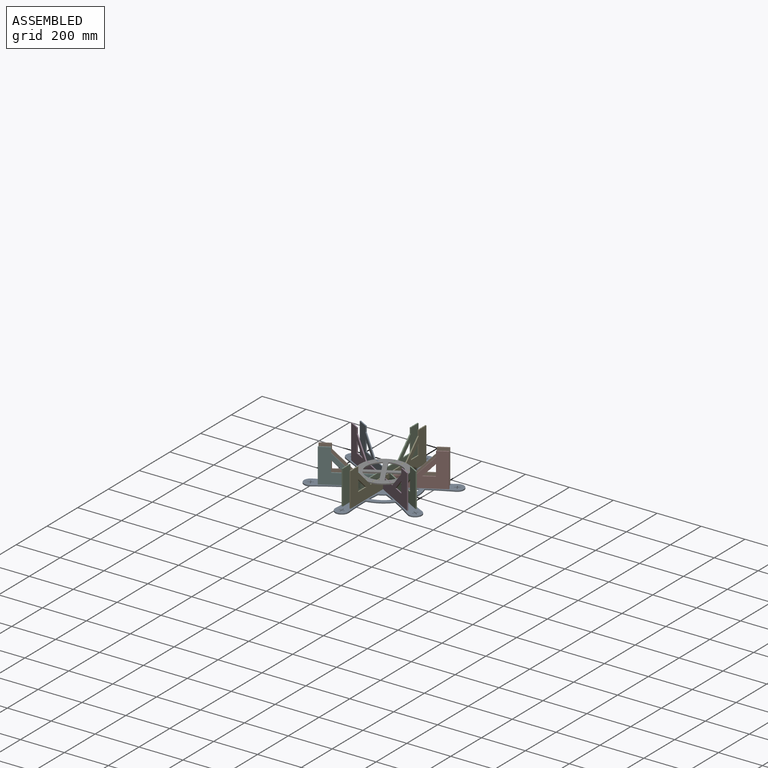
[diagram: assembled view]
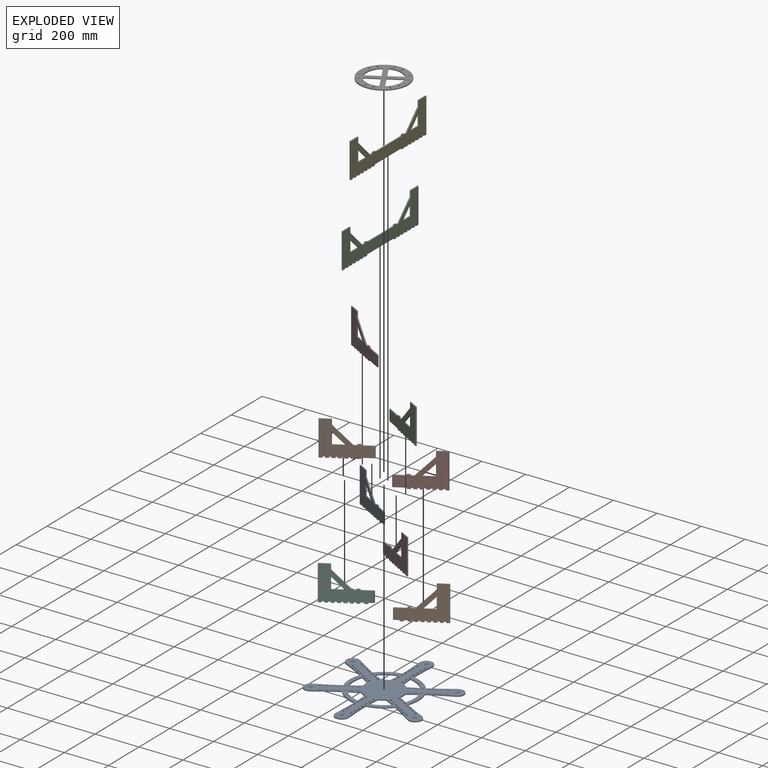
[diagram: exploded view]
GUIDED TOUR — MATED ASSEMBLY (Onshape document 719e027ad515a8deff62a5f3, AutoMate assembly 719e027ad515a8deff62a5f3_9986dfa3a491b61610971efd_74ac65e22d74407ae84c7490_default)

This assembly has 12 components, labeled P0..P11 below (a component is one placed occurrence of a part; the same part can appear more than once), held together by 11 mates. A mate is a constraint between two components; its type names the relative motion it leaves free:
  FASTENED — locks the two components together rigidly (no relative motion).
Axis/direction vectors are unit vectors and 'through' points are millimeter coordinates, both in the assembly's world frame.

MATES
  1. FASTENED "Fastened 4": P8 <-> P0, direction (0.000, 0.000, -1.000) through (-124.55, -152.64, -69.97) mm
  2. FASTENED "Fastened 11": P6 <-> P9, direction (0.000, 0.000, 1.000) through (158.97, -225.14, -9.81) mm
  3. FASTENED "Fastened 1": P4 <-> P0, direction (0.000, 0.000, -1.000) through (97.86, -537.86, -69.97) mm
  4. FASTENED "Fastened 8": P11 <-> P0, direction (0.000, 0.000, -1.000) through (-142.41, -183.58, -69.97) mm
  5. FASTENED "Fastened 2": P2 <-> P0, direction (0.000, 0.000, -1.000) through (62.13, -537.86, -69.97) mm
  6. FASTENED "Fastened 3": P3 <-> P0, direction (0.000, 0.000, -1.000) through (284.54, -430.08, -69.97) mm
  7. FASTENED "Fastened 9": P1 <-> P0, direction (0.000, 0.000, -1.000) through (-142.41, -399.14, -69.97) mm
  8. FASTENED "Fastened 7": P10 <-> P0, direction (0.000, 0.000, -1.000) through (302.40, -399.14, -69.97) mm
  9. FASTENED "Fastened 10": P7 <-> P0, direction (0.000, 0.000, -1.000) through (302.40, -183.58, -69.97) mm
  10. FASTENED "Fastened 5": P5 <-> P0, direction (0.000, 0.000, -1.000) through (-124.55, -430.08, -69.97) mm
  11. FASTENED "Fastened 6": P9 <-> P0, direction (0.000, 0.000, -1.000) through (284.54, -152.64, -69.97) mm

ASSEMBLY ORDER
  1. P7 — the base component [order verified]
  2. P1 [order verified]
  3. P3 [order verified]
  4. P8 [order verified]
  5. P5 [order verified]
  6. P9 [order verified]
  7. P10 [order verified]
  8. P11 [order verified]
  9. P6 [order verified]
  10. P2 [order verified]
  11. P4 [order verified]
  12. P0 [order verified]
(P0, P6 verified with a relaxed clearance tolerance: the source model stores slight part interference there.)
Order-tag legend:
  [order verified] — this step's position reverses a verified removal order: the component was checked to insert without passing through the ones already placed.

Of the 12 components, 11 carry the full construction recipe — the FeatureScript program that regenerates the part's solid from scratch; the rest are supplied as boundary geometry only.
Each toured component is shown spotlighted twice — in the assembled view, then in the exploded view, where a leader line traces a displaced component back to its assembled socket (saturated green if recipe-attached, orange if geometry-only; every other component desaturated gray) — followed by its recipe or geometry summary and the mates that hold it.
NOTE — this tour is split across 2 documents so each fits a 32k-token context. This is document 1: the component sections continue in the remaining 1 document, each repeating the header above.
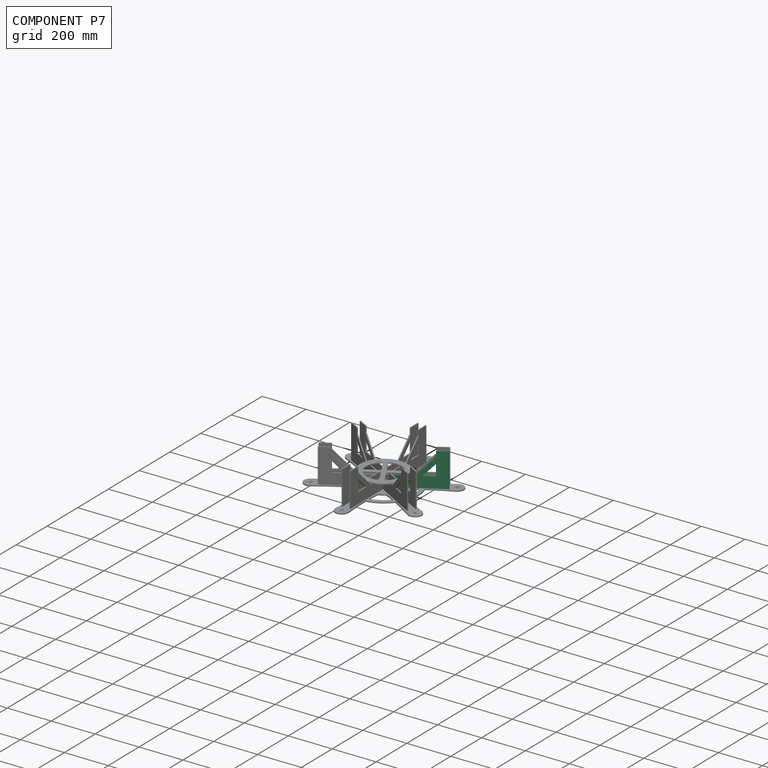
[diagram: component P7 — assembled]
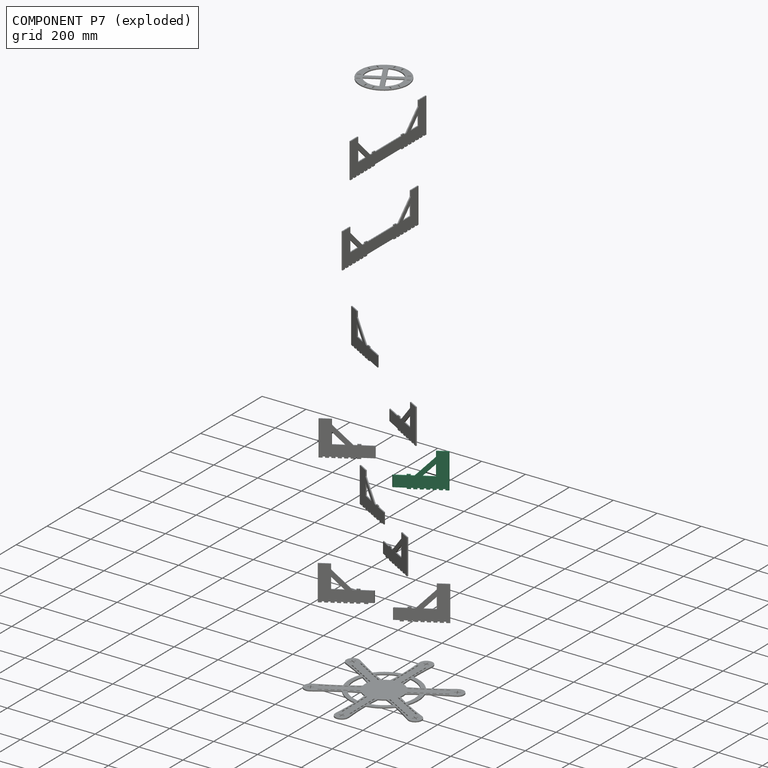
[diagram: component P7 — exploded]
COMPONENT P7 — same part as P1 (CADFS 00227162); its construction recipe is shown at P1.
Held by: FASTENED mate "Fastened 10" to P0.
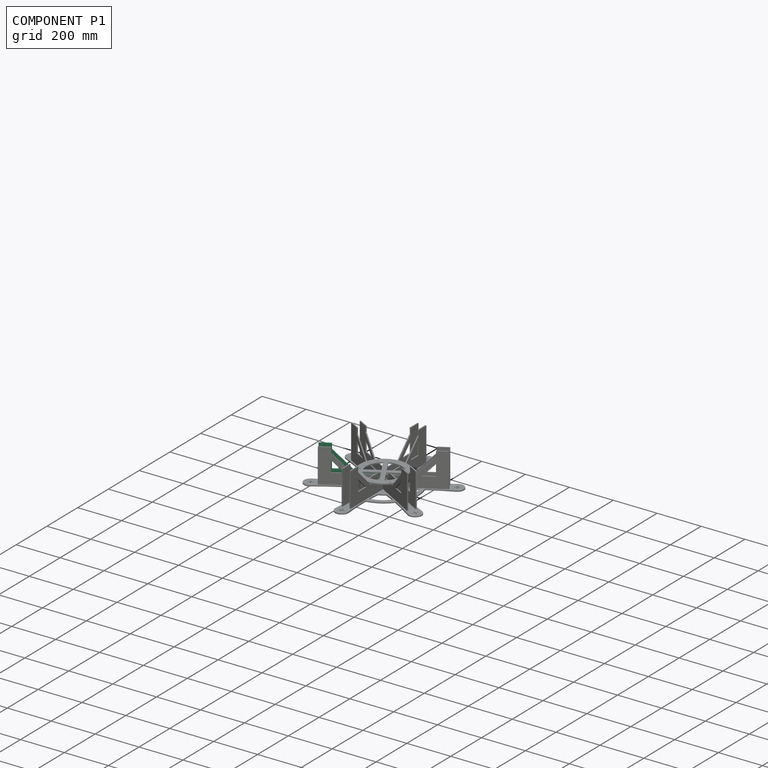
[diagram: component P1 — assembled]
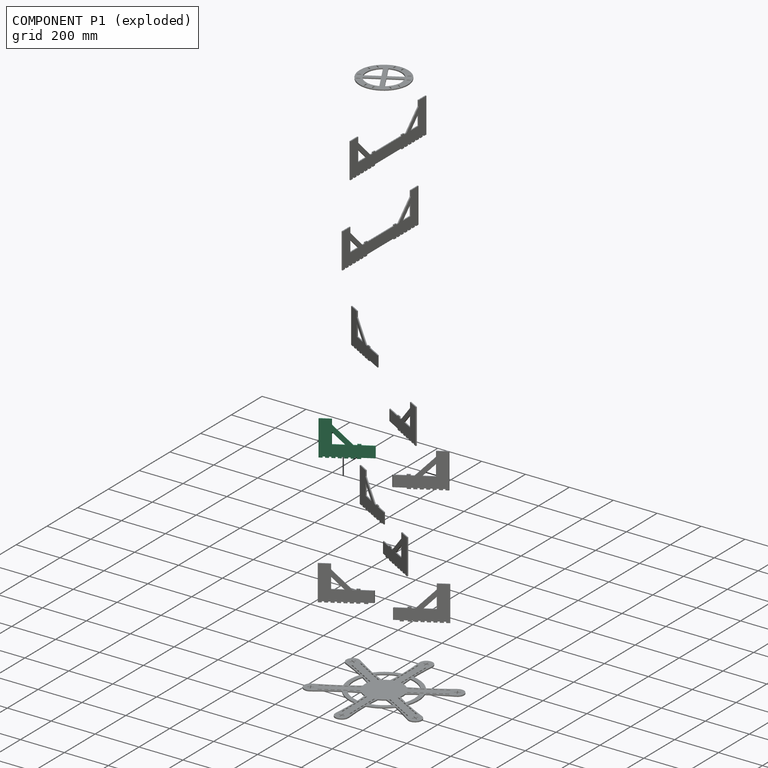
[diagram: component P1 — exploded]
COMPONENT P1 — recipe-attached (CADFS 00227162, mesh-verified: the recipe's output STEP matches this component's geometry to below the mesh-comparison resolution (tessellation chordal tolerance ~0.401 mm)).
Held by: FASTENED mate "Fastened 9" to P0.
Construction recipe (FeatureScript — the CAD program that rebuilds this solid; sketch coordinates are in the units given by the * unit suffixes, e.g. mm):

FeatureScript 1511;
import(path : "onshape/std/geometry.fs", version : "1511.0");
import(path : "onshape/std/common.fs", version : "1511.0");
const mm = millimeter;
const VERTEX = EntityType.VERTEX;
const EDGE = EntityType.EDGE;
const FACE = EntityType.FACE;
const BODY = EntityType.BODY;
function v(x, y){return vector(x, y);}
function OD(order){return orderDisambiguation(order);}
function OSD(set){return originalSetDisambiguation(set);}
function TD(topology){return topologyDisambiguation(topology);}
function TDD(query){return trueDependencyDisambiguation(query);}
function sQuery(a, b, c) {return sketchEntityQuery(a, b, c);}

annotation { "Feature Type Name" : "Feature", "Feature Type Description" : "" }
export const myFeature = defineFeature(function(context is Context, id is Id, definition is map)
    precondition{}
    {
        {
            var Q0;
            Q0=qCreatedBy(makeId("Front.planeOp"),FACE);
            var sketch = newSketch(context, id + "F0", { "sketchPlane" : qUnion([Q0])});
            skLineSegment(sketch, "E0", {"start": v(-32.42, 0) * mm, "end": v(-246.5, 0) * mm});
            skLineSegment(sketch, "E1", {"start": v(-246.5, 0) * mm, "end": v(-246.5, 130) * mm});
            skLineSegment(sketch, "E2", {"start": v(-246.5, 130) * mm, "end": v(-196.5, 130) * mm});
            skLineSegment(sketch, "E3", {"start": v(-196.5, 130) * mm, "end": v(-196.5, 50) * mm});
            skLineSegment(sketch, "E4", {"start": v(-196.5, 50) * mm, "end": v(-32.42, 50) * mm});
            skLineSegment(sketch, "E5", {"start": v(-196.5, 130) * mm, "end": v(-116.5, 50) * mm});
            skLineSegment(sketch, "E6", {"start": v(-196.5, 101.6) * mm, "end": v(-144.9, 50) * mm});
            skLineSegment(sketch, "E7", {"start": v(-246.5, 0) * mm, "end": v(-246.5, -5.08) * mm});
            skLineSegment(sketch, "E8", {"start": v(-246.5, -5.08) * mm, "end": v(-231.5, -5.08) * mm});
            skLineSegment(sketch, "E9", {"start": v(-231.5, -5.08) * mm, "end": v(-231.5, 0) * mm});
            skLineSegment(sketch, "E10.1.0.0", {"start": v(-207.5, -5.08) * mm, "end": v(-207.5, 0) * mm});
            skLineSegment(sketch, "E10.1.0.1", {"start": v(-222.5, -5.08) * mm, "end": v(-207.5, -5.08) * mm});
            skLineSegment(sketch, "E10.1.0.2", {"start": v(-222.5, 0) * mm, "end": v(-222.5, -5.08) * mm});
            skLineSegment(sketch, "E10.2.0.0", {"start": v(-183.5, -5.08) * mm, "end": v(-183.5, 0) * mm});
            skLineSegment(sketch, "E10.2.0.1", {"start": v(-198.5, -5.08) * mm, "end": v(-183.5, -5.08) * mm});
            skLineSegment(sketch, "E10.2.0.2", {"start": v(-198.5, 0) * mm, "end": v(-198.5, -5.08) * mm});
            skLineSegment(sketch, "E10.3.0.0", {"start": v(-159.5, -5.08) * mm, "end": v(-159.5, 0) * mm});
            skLineSegment(sketch, "E10.3.0.1", {"start": v(-174.5, -5.08) * mm, "end": v(-159.5, -5.08) * mm});
            skLineSegment(sketch, "E10.3.0.2", {"start": v(-174.5, 0) * mm, "end": v(-174.5, -5.08) * mm});
            skLineSegment(sketch, "E10.4.0.0", {"start": v(-135.5, -5.08) * mm, "end": v(-135.5, 0) * mm});
            skLineSegment(sketch, "E10.4.0.1", {"start": v(-150.5, -5.08) * mm, "end": v(-135.5, -5.08) * mm});
            skLineSegment(sketch, "E10.4.0.2", {"start": v(-150.5, 0) * mm, "end": v(-150.5, -5.08) * mm});
            skLineSegment(sketch, "E10.5.0.0", {"start": v(-111.5, -5.08) * mm, "end": v(-111.5, 0) * mm});
            skLineSegment(sketch, "E10.5.0.1", {"start": v(-126.5, -5.08) * mm, "end": v(-111.5, -5.08) * mm});
            skLineSegment(sketch, "E10.5.0.2", {"start": v(-126.5, 0) * mm, "end": v(-126.5, -5.08) * mm});
            skLineSegment(sketch, "E10.6.0.0", {"start": v(-87.5, -5.08) * mm, "end": v(-87.5, 0) * mm});
            skLineSegment(sketch, "E10.6.0.1", {"start": v(-102.5, -5.08) * mm, "end": v(-87.5, -5.08) * mm});
            skLineSegment(sketch, "E10.6.0.2", {"start": v(-102.5, 0) * mm, "end": v(-102.5, -5.08) * mm});
            skLineSegment(sketch, "E10.direction1", {"start": v(-246.5, -5.08) * mm, "end": v(-222.5, -5.08) * mm, "construction": true});
            skLineSegment(sketch, "E11", {"start": v(-32.42, 50) * mm, "end": v(-32.42, 0) * mm});
            skPoint(sketch, "E12.start.orphan", {"position": v(0, 50) * mm});
            skSolve(sketch);
        }
        {
            var Q0;
            Q0=qSketchRegion(id+"F0",true);
            extrude(context, id + "F1", {"entities" : qUnion([Q0]), "depth" : 5.08 * mm});
        }
        {
            var Q0;
            Q0=makeQuery(id+"F1.opExtrude","SWEPT_FACE",FACE,{"disambiguationData":[OSD([sQuery(id+"F0.wireOp",EDGE,"E2")])]});
            var Q1;
            Q1=makeQuery(id+"F1.opExtrude","SWEPT_FACE",FACE,{"disambiguationData":[OSD([sQuery(id+"F0.wireOp",EDGE,"0f3f7d79-0024-4810-854d-b7a6c9fa19c64.MirrorCS")])]});
            extrude(context, id + "F2", {"entities" : qUnion([Q0, Q1]), "operationType" : NewBodyOperationType.ADD, "depth" : 25 * mm});
        }
        {
            var Q0;
            {var subQ0=sQuery(id+"F0.wireOp",EDGE,"E0");Q0=makeQuery(id+"F1.opExtrude","SWEPT_FACE",FACE,{"disambiguationData":[OSD([subQ0]),TDD([makeQuery(id+"F0.imprint","IMPRINT",EDGE,{"disambiguationData":[TD([[makeQuery(id+"F0.imprint","INTERSECT",VERTEX,{"derivedFrom":[subQ0,sQuery(id+"F0.wireOp",EDGE,"E11")]}),-1.0]])],"derivedFrom":subQ0})])]});}
            var sketch = newSketch(context, id + "F3", { "sketchPlane" : qUnion([Q0])});
            skLineSegment(sketch, "E13", {"start": v(-32.42, 5.08) * mm, "end": v(-35.35, 0) * mm});
            skSolve(sketch);
        }
        {
            var Q0;
            {var subQ0=sQuery(id+"F3.wireOp",EDGE,"E13");Q0=makeQuery(id+"F3.imprint","IMPRINT",FACE,{"disambiguationData":[TD([[makeQuery(id+"F3.imprint","IMPRINT",EDGE,{"derivedFrom":subQ0}),1.0]])]});}
            extrude(context, id + "F4", {"entities" : qUnion([Q0]), "operationType" : NewBodyOperationType.REMOVE, "oppositeDirection" : true, "depth" : 58 * mm});
        }
        {
            var Q0;
            {var subQ0=sQuery(id+"F0.wireOp",EDGE,"E4");Q0=makeQuery(id+"F1.opExtrude","SWEPT_FACE",FACE,{"disambiguationData":[OSD([subQ0]),TDD([makeQuery(id+"F0.imprint","IMPRINT",EDGE,{"disambiguationData":[TD([[makeQuery(id+"F0.imprint","INTERSECT",VERTEX,{"derivedFrom":[subQ0,sQuery(id+"F0.wireOp",EDGE,"E11")]}),1.0]])],"derivedFrom":subQ0})])]});}
            var sketch = newSketch(context, id + "F5", { "sketchPlane" : qUnion([Q0])});
            skLineSegment(sketch, "E14.right", {"start": v(-101.5, 0) * mm, "end": v(-101.5, -5.08) * mm});
            skLineSegment(sketch, "E15.MirrorCS", {"start": v(-86.5, 0) * mm, "end": v(-86.5, -5.08) * mm});
            skPoint(sketch, "E14.top.start.orphan", {"position": v(-116.5, -5.08) * mm});
            skPoint(sketch, "E14.bottom.start.orphan", {"position": v(-116.5, 0) * mm});
            skLineSegment(sketch, "E16", {"start": v(-101.5, 0) * mm, "end": v(-86.5, 0) * mm});
            skLineSegment(sketch, "E17", {"start": v(-86.5, -5.08) * mm, "end": v(-101.5, -5.08) * mm});
            skSolve(sketch);
        }
        {
            var Q0;
            Q0 = qSketchRegion(id + "F5", true);
            extrude(context, id + "F6", {"entities" : qUnion([Q0]), "operationType" : NewBodyOperationType.ADD, "depth" : 5.08 * mm});
        }
    });
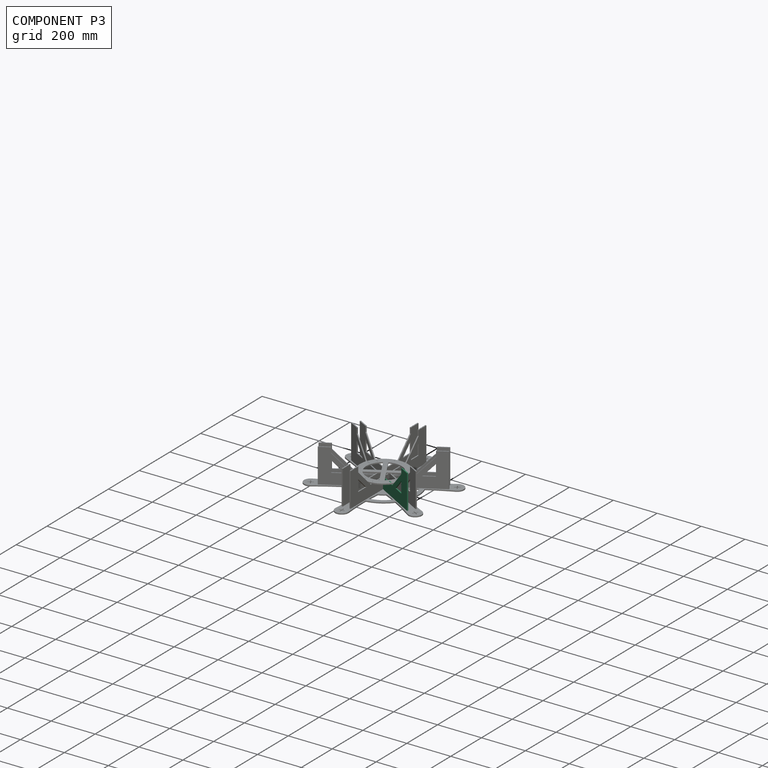
[diagram: component P3 — assembled]
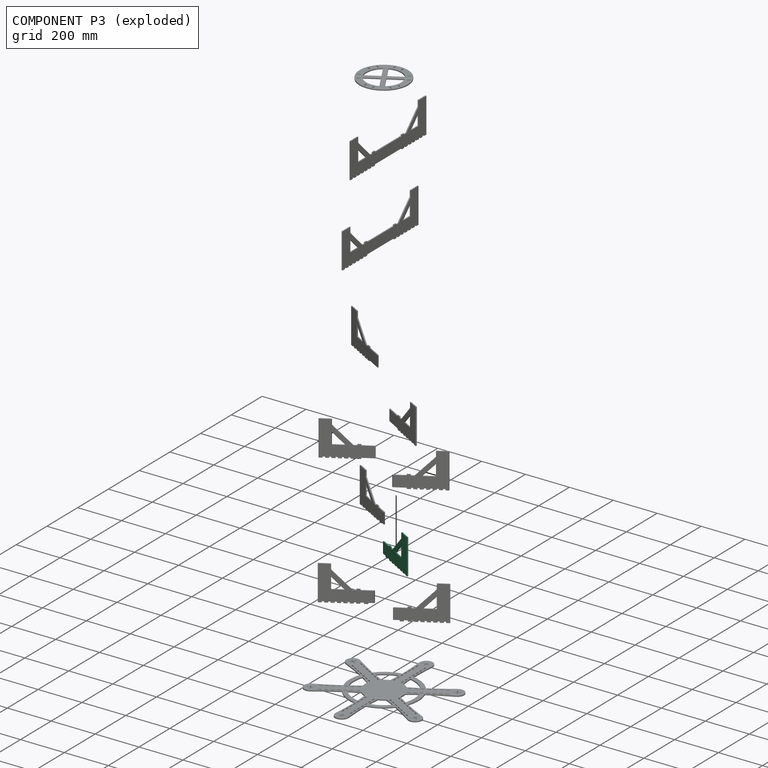
[diagram: component P3 — exploded]
COMPONENT P3 — recipe-attached (CADFS 00227161, mesh-verified: the recipe's output STEP matches this component's geometry to below the mesh-comparison resolution (tessellation chordal tolerance ~0.401 mm)).
Held by: FASTENED mate "Fastened 3" to P0.
Construction recipe (FeatureScript — the CAD program that rebuilds this solid; sketch coordinates are in the units given by the * unit suffixes, e.g. mm):

FeatureScript 1511;
import(path : "onshape/std/geometry.fs", version : "1511.0");
import(path : "onshape/std/common.fs", version : "1511.0");
const mm = millimeter;
const VERTEX = EntityType.VERTEX;
const EDGE = EntityType.EDGE;
const FACE = EntityType.FACE;
const BODY = EntityType.BODY;
function v(x, y){return vector(x, y);}
function OD(order){return orderDisambiguation(order);}
function OSD(set){return originalSetDisambiguation(set);}
function TD(topology){return topologyDisambiguation(topology);}
function TDD(query){return trueDependencyDisambiguation(query);}
function sQuery(a, b, c) {return sketchEntityQuery(a, b, c);}

annotation { "Feature Type Name" : "Feature", "Feature Type Description" : "" }
export const myFeature = defineFeature(function(context is Context, id is Id, definition is map)
    precondition{}
    {
        {
            var Q0;
            Q0=qCreatedBy(makeId("Front.planeOp"),FACE);
            var sketch = newSketch(context, id + "F0", { "sketchPlane" : qUnion([Q0])});
            skLineSegment(sketch, "E0", {"start": v(-32.42, 0) * mm, "end": v(-246.5, 0) * mm});
            skLineSegment(sketch, "E1", {"start": v(-246.5, 0) * mm, "end": v(-246.5, 130) * mm});
            skLineSegment(sketch, "E2", {"start": v(-246.5, 130) * mm, "end": v(-196.5, 130) * mm});
            skLineSegment(sketch, "E3", {"start": v(-196.5, 130) * mm, "end": v(-196.5, 50) * mm});
            skLineSegment(sketch, "E4", {"start": v(-196.5, 50) * mm, "end": v(-32.42, 50) * mm});
            skLineSegment(sketch, "E5", {"start": v(-196.5, 130) * mm, "end": v(-116.5, 50) * mm});
            skLineSegment(sketch, "E6", {"start": v(-196.5, 101.6) * mm, "end": v(-144.9, 50) * mm});
            skLineSegment(sketch, "E7", {"start": v(-246.5, 0) * mm, "end": v(-246.5, -5.08) * mm});
            skLineSegment(sketch, "E8", {"start": v(-246.5, -5.08) * mm, "end": v(-231.5, -5.08) * mm});
            skLineSegment(sketch, "E9", {"start": v(-231.5, -5.08) * mm, "end": v(-231.5, 0) * mm});
            skLineSegment(sketch, "E10.1.0.0", {"start": v(-207.5, -5.08) * mm, "end": v(-207.5, 0) * mm});
            skLineSegment(sketch, "E10.1.0.1", {"start": v(-222.5, -5.08) * mm, "end": v(-207.5, -5.08) * mm});
            skLineSegment(sketch, "E10.1.0.2", {"start": v(-222.5, 0) * mm, "end": v(-222.5, -5.08) * mm});
            skLineSegment(sketch, "E10.2.0.0", {"start": v(-183.5, -5.08) * mm, "end": v(-183.5, 0) * mm});
            skLineSegment(sketch, "E10.2.0.1", {"start": v(-198.5, -5.08) * mm, "end": v(-183.5, -5.08) * mm});
            skLineSegment(sketch, "E10.2.0.2", {"start": v(-198.5, 0) * mm, "end": v(-198.5, -5.08) * mm});
            skLineSegment(sketch, "E10.3.0.0", {"start": v(-159.5, -5.08) * mm, "end": v(-159.5, 0) * mm});
            skLineSegment(sketch, "E10.3.0.1", {"start": v(-174.5, -5.08) * mm, "end": v(-159.5, -5.08) * mm});
            skLineSegment(sketch, "E10.3.0.2", {"start": v(-174.5, 0) * mm, "end": v(-174.5, -5.08) * mm});
            skLineSegment(sketch, "E10.4.0.0", {"start": v(-135.5, -5.08) * mm, "end": v(-135.5, 0) * mm});
            skLineSegment(sketch, "E10.4.0.1", {"start": v(-150.5, -5.08) * mm, "end": v(-135.5, -5.08) * mm});
            skLineSegment(sketch, "E10.4.0.2", {"start": v(-150.5, 0) * mm, "end": v(-150.5, -5.08) * mm});
            skLineSegment(sketch, "E10.5.0.0", {"start": v(-111.5, -5.08) * mm, "end": v(-111.5, 0) * mm});
            skLineSegment(sketch, "E10.5.0.1", {"start": v(-126.5, -5.08) * mm, "end": v(-111.5, -5.08) * mm});
            skLineSegment(sketch, "E10.5.0.2", {"start": v(-126.5, 0) * mm, "end": v(-126.5, -5.08) * mm});
            skLineSegment(sketch, "E10.6.0.0", {"start": v(-87.5, -5.08) * mm, "end": v(-87.5, 0) * mm});
            skLineSegment(sketch, "E10.6.0.1", {"start": v(-102.5, -5.08) * mm, "end": v(-87.5, -5.08) * mm});
            skLineSegment(sketch, "E10.6.0.2", {"start": v(-102.5, 0) * mm, "end": v(-102.5, -5.08) * mm});
            skLineSegment(sketch, "E10.direction1", {"start": v(-246.5, -5.08) * mm, "end": v(-222.5, -5.08) * mm, "construction": true});
            skLineSegment(sketch, "E11", {"start": v(-32.42, 50) * mm, "end": v(-32.42, 0) * mm});
            skPoint(sketch, "E12.start.orphan", {"position": v(0, 50) * mm});
            skSolve(sketch);
        }
        {
            var Q0;
            Q0=qSketchRegion(id+"F0",true);
            extrude(context, id + "F1", {"entities" : qUnion([Q0]), "depth" : 5.08 * mm});
        }
        {
            var Q0;
            Q0=makeQuery(id+"F1.opExtrude","SWEPT_FACE",FACE,{"disambiguationData":[OSD([sQuery(id+"F0.wireOp",EDGE,"E2")])]});
            var Q1;
            Q1=makeQuery(id+"F1.opExtrude","SWEPT_FACE",FACE,{"disambiguationData":[OSD([sQuery(id+"F0.wireOp",EDGE,"0f3f7d79-0024-4810-854d-b7a6c9fa19c64.MirrorCS")])]});
            extrude(context, id + "F2", {"entities" : qUnion([Q0, Q1]), "operationType" : NewBodyOperationType.ADD, "depth" : 25 * mm});
        }
        {
            var Q0;
            {var subQ0=sQuery(id+"F0.wireOp",EDGE,"E0");Q0=makeQuery(id+"F1.opExtrude","SWEPT_FACE",FACE,{"disambiguationData":[OSD([subQ0]),TDD([makeQuery(id+"F0.imprint","IMPRINT",EDGE,{"disambiguationData":[TD([[makeQuery(id+"F0.imprint","INTERSECT",VERTEX,{"derivedFrom":[subQ0,sQuery(id+"F0.wireOp",EDGE,"E11")]}),-1.0]])],"derivedFrom":subQ0})])]});}
            var sketch = newSketch(context, id + "F3", { "sketchPlane" : qUnion([Q0])});
            skLineSegment(sketch, "E13", {"start": v(-32.42, 5.08) * mm, "end": v(-35.35, 0) * mm});
            skSolve(sketch);
        }
        {
            var Q0;
            {var subQ0=sQuery(id+"F3.wireOp",EDGE,"E13");Q0=makeQuery(id+"F3.imprint","IMPRINT",FACE,{"disambiguationData":[TD([[makeQuery(id+"F3.imprint","IMPRINT",EDGE,{"derivedFrom":subQ0}),1.0]])]});}
            extrude(context, id + "F4", {"entities" : qUnion([Q0]), "operationType" : NewBodyOperationType.REMOVE, "oppositeDirection" : true, "depth" : 58 * mm});
        }
        {
            var Q0;
            {var subQ0=sQuery(id+"F0.wireOp",EDGE,"E0");Q0=makeQuery(id+"F1.opExtrude","SWEPT_FACE",FACE,{"disambiguationData":[OSD([subQ0]),TDD([makeQuery(id+"F0.imprint","IMPRINT",EDGE,{"disambiguationData":[TD([[makeQuery(id+"F0.imprint","INTERSECT",VERTEX,{"derivedFrom":[subQ0,sQuery(id+"F0.wireOp",EDGE,"E11")]}),-1.0]])],"derivedFrom":subQ0})])]});}
            var sketch = newSketch(context, id + "F5", { "sketchPlane" : qUnion([Q0])});
            skLineSegment(sketch, "E14.bottom", {"start": v(-72.5, 5.08) * mm, "end": v(-57.5, 5.08) * mm});
            skLineSegment(sketch, "E14.top", {"start": v(-72.5, 0) * mm, "end": v(-57.5, 0) * mm});
            skLineSegment(sketch, "E14.right", {"start": v(-57.5, 5.08) * mm, "end": v(-57.5, 0) * mm});
            skLineSegment(sketch, "E15", {"start": v(-72.5, 5.08) * mm, "end": v(-72.5, 0) * mm});
            skPoint(sketch, "E14.left.start.orphan", {"position": v(-87.5, 5.08) * mm});
            skPoint(sketch, "E16.orphan", {"position": v(-87.5, 0) * mm});
            skSolve(sketch);
        }
        {
            var Q0;
            Q0 = qSketchRegion(id + "F5", true);
            extrude(context, id + "F6", {"entities" : qUnion([Q0]), "operationType" : NewBodyOperationType.ADD, "depth" : 5.08 * mm});
        }
        {
            var Q0;
            {var subQ0=sQuery(id+"F0.wireOp",EDGE,"E4");Q0=makeQuery(id+"F1.opExtrude","SWEPT_FACE",FACE,{"disambiguationData":[OSD([subQ0]),TDD([makeQuery(id+"F0.imprint","IMPRINT",EDGE,{"disambiguationData":[TD([[makeQuery(id+"F0.imprint","INTERSECT",VERTEX,{"derivedFrom":[subQ0,sQuery(id+"F0.wireOp",EDGE,"E11")]}),1.0]])],"derivedFrom":subQ0})])]});}
            var sketch = newSketch(context, id + "F7", { "sketchPlane" : qUnion([Q0])});
            skLineSegment(sketch, "E17.bottom", {"start": v(-101.5, 0) * mm, "end": v(-86.5, 0) * mm});
            skLineSegment(sketch, "E17.top", {"start": v(-101.5, -5.08) * mm, "end": v(-86.5, -5.08) * mm});
            skLineSegment(sketch, "E17.right", {"start": v(-86.5, 0) * mm, "end": v(-86.5, -5.08) * mm});
            skLineSegment(sketch, "E18", {"start": v(-101.5, 0) * mm, "end": v(-101.5, -5.08) * mm});
            skPoint(sketch, "E17.left.start.orphan", {"position": v(-116.5, 0) * mm});
            skPoint(sketch, "E19.orphan", {"position": v(-116.5, -5.08) * mm});
            skSolve(sketch);
        }
        {
            var Q0;
            Q0 = qSketchRegion(id + "F7", true);
            extrude(context, id + "F8", {"entities" : qUnion([Q0]), "operationType" : NewBodyOperationType.ADD, "depth" : 5.08 * mm});
        }
    });
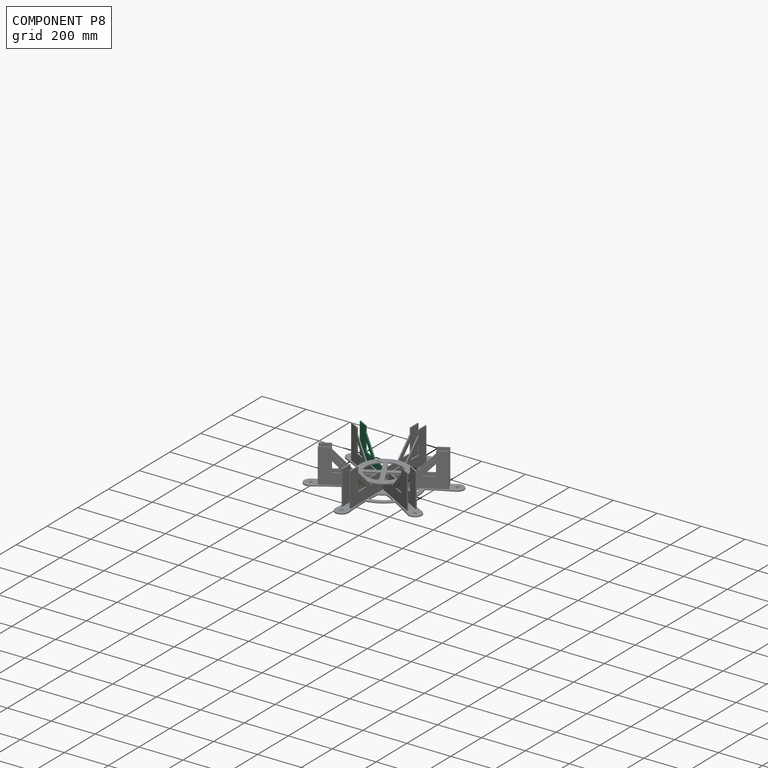
[diagram: component P8 — assembled]
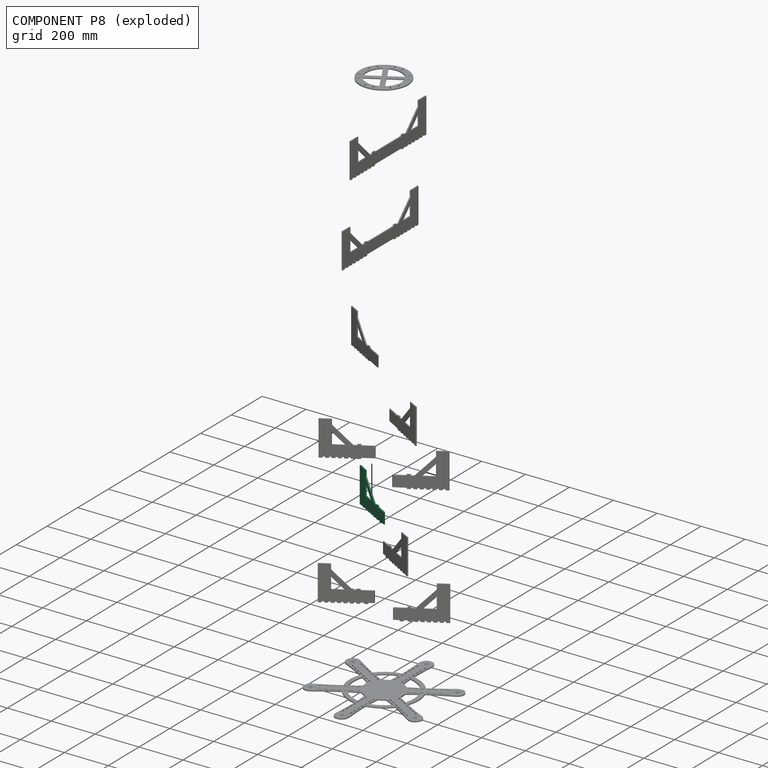
[diagram: component P8 — exploded]
COMPONENT P8 — same part as P3 (CADFS 00227161); its construction recipe is shown at P3.
Held by: FASTENED mate "Fastened 4" to P0.
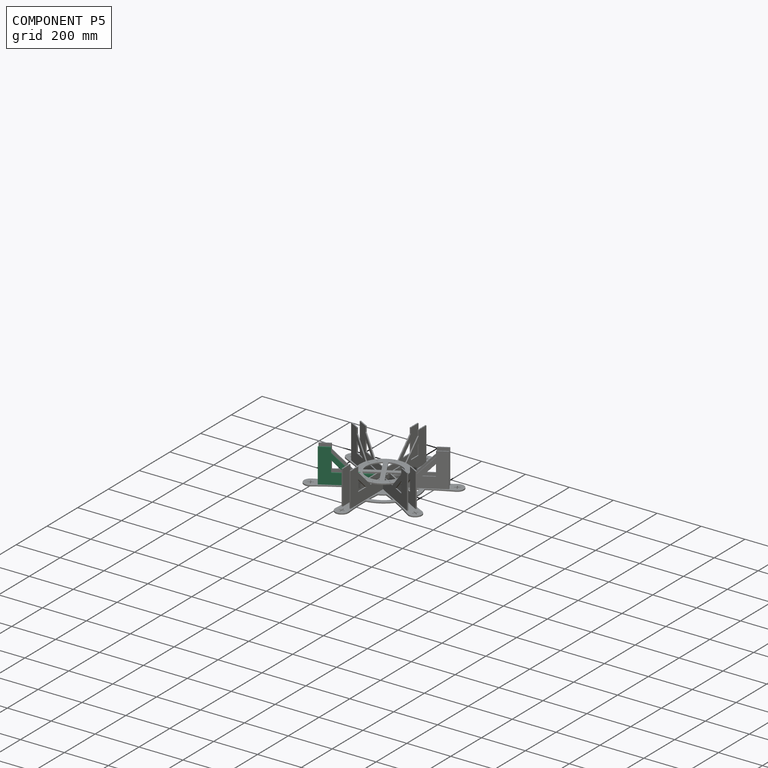
[diagram: component P5 — assembled]
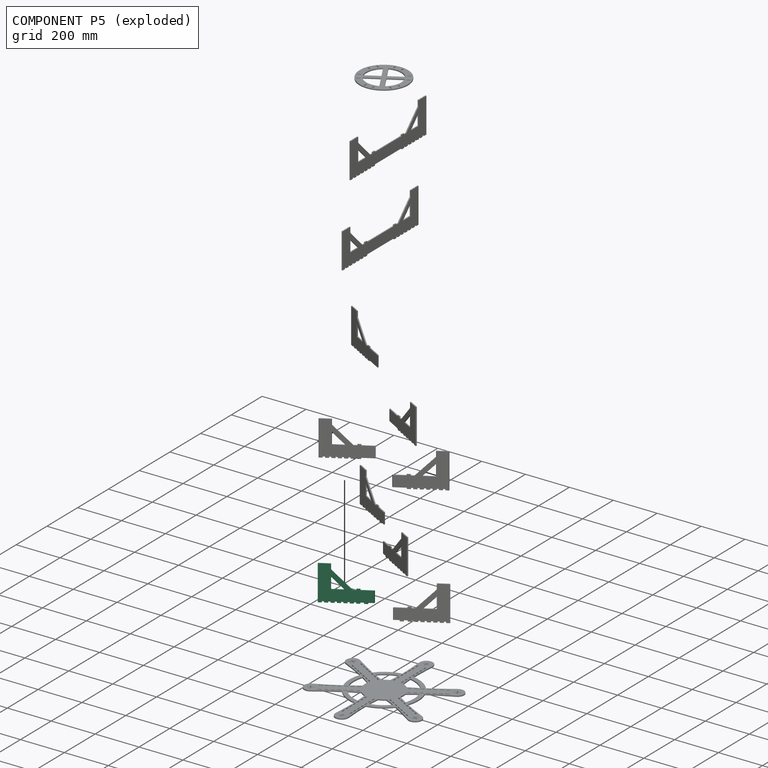
[diagram: component P5 — exploded]
COMPONENT P5 — recipe-attached (CADFS 00227161, mesh-verified: the recipe's output STEP matches this component's geometry to below the mesh-comparison resolution (tessellation chordal tolerance ~0.401 mm)).
Held by: FASTENED mate "Fastened 5" to P0.
Construction recipe (FeatureScript — the CAD program that rebuilds this solid; sketch coordinates are in the units given by the * unit suffixes, e.g. mm):

FeatureScript 1511;
import(path : "onshape/std/geometry.fs", version : "1511.0");
import(path : "onshape/std/common.fs", version : "1511.0");
const mm = millimeter;
const VERTEX = EntityType.VERTEX;
const EDGE = EntityType.EDGE;
const FACE = EntityType.FACE;
const BODY = EntityType.BODY;
function v(x, y){return vector(x, y);}
function OD(order){return orderDisambiguation(order);}
function OSD(set){return originalSetDisambiguation(set);}
function TD(topology){return topologyDisambiguation(topology);}
function TDD(query){return trueDependencyDisambiguation(query);}
function sQuery(a, b, c) {return sketchEntityQuery(a, b, c);}

annotation { "Feature Type Name" : "Feature", "Feature Type Description" : "" }
export const myFeature = defineFeature(function(context is Context, id is Id, definition is map)
    precondition{}
    {
        {
            var Q0;
            Q0=qCreatedBy(makeId("Front.planeOp"),FACE);
            var sketch = newSketch(context, id + "F0", { "sketchPlane" : qUnion([Q0])});
            skLineSegment(sketch, "E0", {"start": v(-32.42, 0) * mm, "end": v(-246.5, 0) * mm});
            skLineSegment(sketch, "E1", {"start": v(-246.5, 0) * mm, "end": v(-246.5, 130) * mm});
            skLineSegment(sketch, "E2", {"start": v(-246.5, 130) * mm, "end": v(-196.5, 130) * mm});
            skLineSegment(sketch, "E3", {"start": v(-196.5, 130) * mm, "end": v(-196.5, 50) * mm});
            skLineSegment(sketch, "E4", {"start": v(-196.5, 50) * mm, "end": v(-32.42, 50) * mm});
            skLineSegment(sketch, "E5", {"start": v(-196.5, 130) * mm, "end": v(-116.5, 50) * mm});
            skLineSegment(sketch, "E6", {"start": v(-196.5, 101.6) * mm, "end": v(-144.9, 50) * mm});
            skLineSegment(sketch, "E7", {"start": v(-246.5, 0) * mm, "end": v(-246.5, -5.08) * mm});
            skLineSegment(sketch, "E8", {"start": v(-246.5, -5.08) * mm, "end": v(-231.5, -5.08) * mm});
            skLineSegment(sketch, "E9", {"start": v(-231.5, -5.08) * mm, "end": v(-231.5, 0) * mm});
            skLineSegment(sketch, "E10.1.0.0", {"start": v(-207.5, -5.08) * mm, "end": v(-207.5, 0) * mm});
            skLineSegment(sketch, "E10.1.0.1", {"start": v(-222.5, -5.08) * mm, "end": v(-207.5, -5.08) * mm});
            skLineSegment(sketch, "E10.1.0.2", {"start": v(-222.5, 0) * mm, "end": v(-222.5, -5.08) * mm});
            skLineSegment(sketch, "E10.2.0.0", {"start": v(-183.5, -5.08) * mm, "end": v(-183.5, 0) * mm});
            skLineSegment(sketch, "E10.2.0.1", {"start": v(-198.5, -5.08) * mm, "end": v(-183.5, -5.08) * mm});
            skLineSegment(sketch, "E10.2.0.2", {"start": v(-198.5, 0) * mm, "end": v(-198.5, -5.08) * mm});
            skLineSegment(sketch, "E10.3.0.0", {"start": v(-159.5, -5.08) * mm, "end": v(-159.5, 0) * mm});
            skLineSegment(sketch, "E10.3.0.1", {"start": v(-174.5, -5.08) * mm, "end": v(-159.5, -5.08) * mm});
            skLineSegment(sketch, "E10.3.0.2", {"start": v(-174.5, 0) * mm, "end": v(-174.5, -5.08) * mm});
            skLineSegment(sketch, "E10.4.0.0", {"start": v(-135.5, -5.08) * mm, "end": v(-135.5, 0) * mm});
            skLineSegment(sketch, "E10.4.0.1", {"start": v(-150.5, -5.08) * mm, "end": v(-135.5, -5.08) * mm});
            skLineSegment(sketch, "E10.4.0.2", {"start": v(-150.5, 0) * mm, "end": v(-150.5, -5.08) * mm});
            skLineSegment(sketch, "E10.5.0.0", {"start": v(-111.5, -5.08) * mm, "end": v(-111.5, 0) * mm});
            skLineSegment(sketch, "E10.5.0.1", {"start": v(-126.5, -5.08) * mm, "end": v(-111.5, -5.08) * mm});
            skLineSegment(sketch, "E10.5.0.2", {"start": v(-126.5, 0) * mm, "end": v(-126.5, -5.08) * mm});
            skLineSegment(sketch, "E10.6.0.0", {"start": v(-87.5, -5.08) * mm, "end": v(-87.5, 0) * mm});
            skLineSegment(sketch, "E10.6.0.1", {"start": v(-102.5, -5.08) * mm, "end": v(-87.5, -5.08) * mm});
            skLineSegment(sketch, "E10.6.0.2", {"start": v(-102.5, 0) * mm, "end": v(-102.5, -5.08) * mm});
            skLineSegment(sketch, "E10.direction1", {"start": v(-246.5, -5.08) * mm, "end": v(-222.5, -5.08) * mm, "construction": true});
            skLineSegment(sketch, "E11", {"start": v(-32.42, 50) * mm, "end": v(-32.42, 0) * mm});
            skPoint(sketch, "E12.start.orphan", {"position": v(0, 50) * mm});
            skSolve(sketch);
        }
        {
            var Q0;
            Q0=qSketchRegion(id+"F0",true);
            extrude(context, id + "F1", {"entities" : qUnion([Q0]), "depth" : 5.08 * mm});
        }
        {
            var Q0;
            Q0=makeQuery(id+"F1.opExtrude","SWEPT_FACE",FACE,{"disambiguationData":[OSD([sQuery(id+"F0.wireOp",EDGE,"E2")])]});
            var Q1;
            Q1=makeQuery(id+"F1.opExtrude","SWEPT_FACE",FACE,{"disambiguationData":[OSD([sQuery(id+"F0.wireOp",EDGE,"0f3f7d79-0024-4810-854d-b7a6c9fa19c64.MirrorCS")])]});
            extrude(context, id + "F2", {"entities" : qUnion([Q0, Q1]), "operationType" : NewBodyOperationType.ADD, "depth" : 25 * mm});
        }
        {
            var Q0;
            {var subQ0=sQuery(id+"F0.wireOp",EDGE,"E0");Q0=makeQuery(id+"F1.opExtrude","SWEPT_FACE",FACE,{"disambiguationData":[OSD([subQ0]),TDD([makeQuery(id+"F0.imprint","IMPRINT",EDGE,{"disambiguationData":[TD([[makeQuery(id+"F0.imprint","INTERSECT",VERTEX,{"derivedFrom":[subQ0,sQuery(id+"F0.wireOp",EDGE,"E11")]}),-1.0]])],"derivedFrom":subQ0})])]});}
            var sketch = newSketch(context, id + "F3", { "sketchPlane" : qUnion([Q0])});
            skLineSegment(sketch, "E13", {"start": v(-32.42, 5.08) * mm, "end": v(-35.35, 0) * mm});
            skSolve(sketch);
        }
        {
            var Q0;
            {var subQ0=sQuery(id+"F3.wireOp",EDGE,"E13");Q0=makeQuery(id+"F3.imprint","IMPRINT",FACE,{"disambiguationData":[TD([[makeQuery(id+"F3.imprint","IMPRINT",EDGE,{"derivedFrom":subQ0}),1.0]])]});}
            extrude(context, id + "F4", {"entities" : qUnion([Q0]), "operationType" : NewBodyOperationType.REMOVE, "oppositeDirection" : true, "depth" : 58 * mm});
        }
        {
            var Q0;
            {var subQ0=sQuery(id+"F0.wireOp",EDGE,"E0");Q0=makeQuery(id+"F1.opExtrude","SWEPT_FACE",FACE,{"disambiguationData":[OSD([subQ0]),TDD([makeQuery(id+"F0.imprint","IMPRINT",EDGE,{"disambiguationData":[TD([[makeQuery(id+"F0.imprint","INTERSECT",VERTEX,{"derivedFrom":[subQ0,sQuery(id+"F0.wireOp",EDGE,"E11")]}),-1.0]])],"derivedFrom":subQ0})])]});}
            var sketch = newSketch(context, id + "F5", { "sketchPlane" : qUnion([Q0])});
            skLineSegment(sketch, "E14.bottom", {"start": v(-72.5, 5.08) * mm, "end": v(-57.5, 5.08) * mm});
            skLineSegment(sketch, "E14.top", {"start": v(-72.5, 0) * mm, "end": v(-57.5, 0) * mm});
            skLineSegment(sketch, "E14.right", {"start": v(-57.5, 5.08) * mm, "end": v(-57.5, 0) * mm});
            skLineSegment(sketch, "E15", {"start": v(-72.5, 5.08) * mm, "end": v(-72.5, 0) * mm});
            skPoint(sketch, "E14.left.start.orphan", {"position": v(-87.5, 5.08) * mm});
            skPoint(sketch, "E16.orphan", {"position": v(-87.5, 0) * mm});
            skSolve(sketch);
        }
        {
            var Q0;
            Q0 = qSketchRegion(id + "F5", true);
            extrude(context, id + "F6", {"entities" : qUnion([Q0]), "operationType" : NewBodyOperationType.ADD, "depth" : 5.08 * mm});
        }
        {
            var Q0;
            {var subQ0=sQuery(id+"F0.wireOp",EDGE,"E4");Q0=makeQuery(id+"F1.opExtrude","SWEPT_FACE",FACE,{"disambiguationData":[OSD([subQ0]),TDD([makeQuery(id+"F0.imprint","IMPRINT",EDGE,{"disambiguationData":[TD([[makeQuery(id+"F0.imprint","INTERSECT",VERTEX,{"derivedFrom":[subQ0,sQuery(id+"F0.wireOp",EDGE,"E11")]}),1.0]])],"derivedFrom":subQ0})])]});}
            var sketch = newSketch(context, id + "F7", { "sketchPlane" : qUnion([Q0])});
            skLineSegment(sketch, "E17.bottom", {"start": v(-101.5, 0) * mm, "end": v(-86.5, 0) * mm});
            skLineSegment(sketch, "E17.top", {"start": v(-101.5, -5.08) * mm, "end": v(-86.5, -5.08) * mm});
            skLineSegment(sketch, "E17.right", {"start": v(-86.5, 0) * mm, "end": v(-86.5, -5.08) * mm});
            skLineSegment(sketch, "E18", {"start": v(-101.5, 0) * mm, "end": v(-101.5, -5.08) * mm});
            skPoint(sketch, "E17.left.start.orphan", {"position": v(-116.5, 0) * mm});
            skPoint(sketch, "E19.orphan", {"position": v(-116.5, -5.08) * mm});
            skSolve(sketch);
        }
        {
            var Q0;
            Q0 = qSketchRegion(id + "F7", true);
            extrude(context, id + "F8", {"entities" : qUnion([Q0]), "operationType" : NewBodyOperationType.ADD, "depth" : 5.08 * mm});
        }
    });
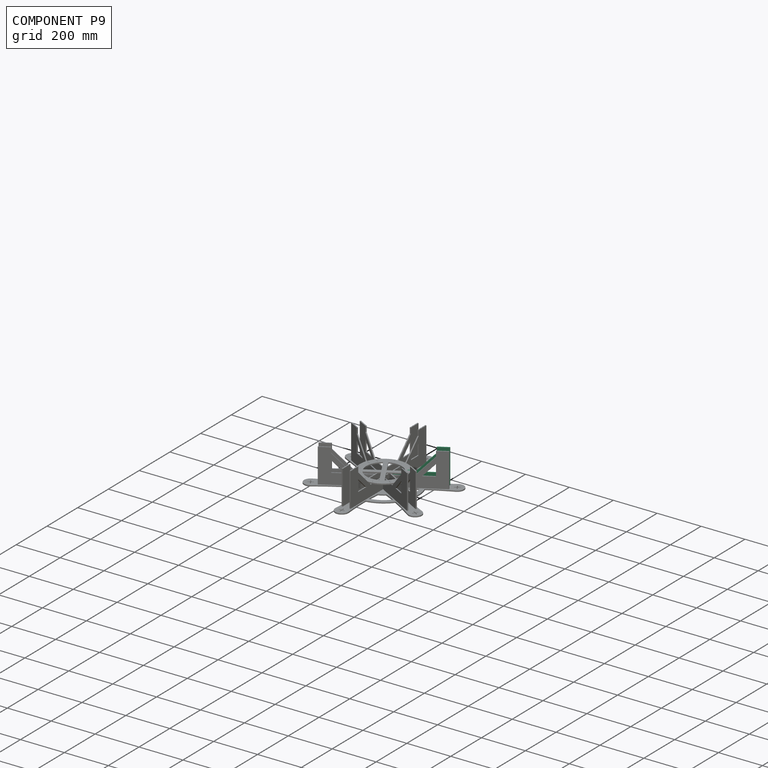
[diagram: component P9 — assembled]
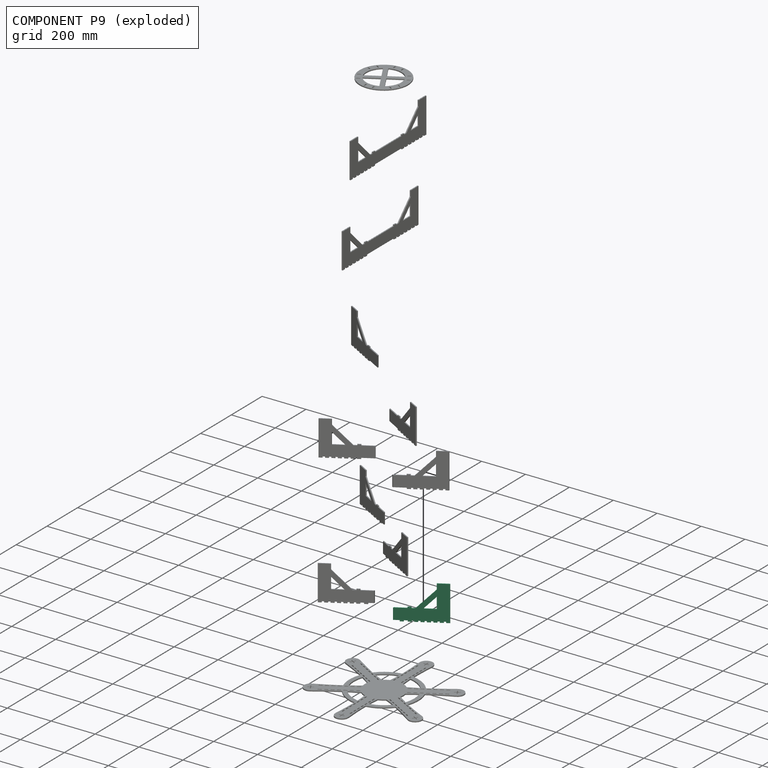
[diagram: component P9 — exploded]
COMPONENT P9 — same part as P5 (CADFS 00227161); its construction recipe is shown at P5.
Held by: FASTENED mate "Fastened 11" to P6; FASTENED mate "Fastened 6" to P0.
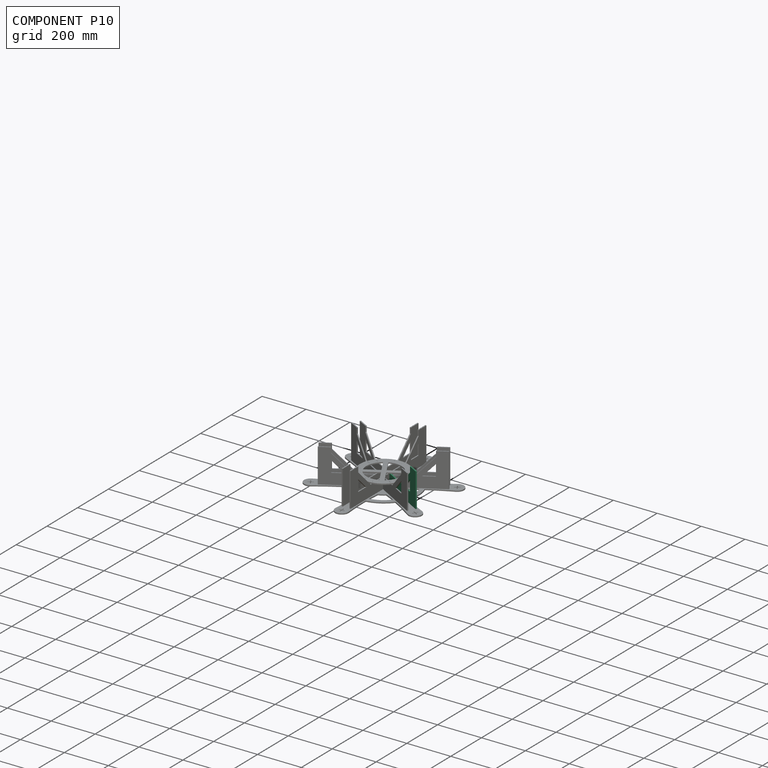
[diagram: component P10 — assembled]
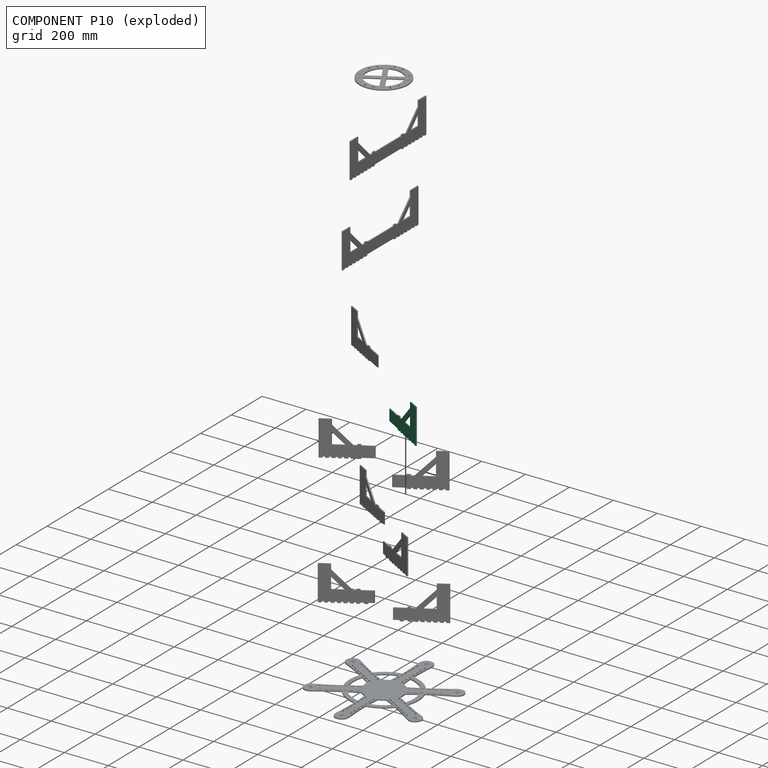
[diagram: component P10 — exploded]
COMPONENT P10 — recipe-attached (CADFS 00227160, mesh-verified: the recipe's output STEP matches this component's geometry to below the mesh-comparison resolution (tessellation chordal tolerance ~0.426 mm)).
Held by: FASTENED mate "Fastened 7" to P0.
Construction recipe (FeatureScript — the CAD program that rebuilds this solid; sketch coordinates are in the units given by the * unit suffixes, e.g. mm):

FeatureScript 1511;
import(path : "onshape/std/geometry.fs", version : "1511.0");
import(path : "onshape/std/common.fs", version : "1511.0");
const mm = millimeter;
const VERTEX = EntityType.VERTEX;
const EDGE = EntityType.EDGE;
const FACE = EntityType.FACE;
const BODY = EntityType.BODY;
function v(x, y){return vector(x, y);}
function OD(order){return orderDisambiguation(order);}
function OSD(set){return originalSetDisambiguation(set);}
function TD(topology){return topologyDisambiguation(topology);}
function TDD(query){return trueDependencyDisambiguation(query);}
function sQuery(a, b, c) {return sketchEntityQuery(a, b, c);}

annotation { "Feature Type Name" : "Feature", "Feature Type Description" : "" }
export const myFeature = defineFeature(function(context is Context, id is Id, definition is map)
    precondition{}
    {
        {
            var Q0;
            Q0=qCreatedBy(makeId("Front.planeOp"),FACE);
            var sketch = newSketch(context, id + "F0", { "sketchPlane" : qUnion([Q0])});
            skLineSegment(sketch, "E0", {"start": v(0, 0) * mm, "end": v(-234.7, 0) * mm});
            skLineSegment(sketch, "E1", {"start": v(-234.7, 0) * mm, "end": v(-234.7, 130) * mm});
            skLineSegment(sketch, "E2", {"start": v(-234.7, 130) * mm, "end": v(-184.7, 130) * mm});
            skLineSegment(sketch, "E3", {"start": v(-184.7, 130) * mm, "end": v(-184.7, 50) * mm});
            skLineSegment(sketch, "E4", {"start": v(-184.7, 50) * mm, "end": v(0, 50) * mm});
            skLineSegment(sketch, "E5", {"start": v(-184.7, 130) * mm, "end": v(-104.7, 50) * mm});
            skLineSegment(sketch, "E6", {"start": v(-184.7, 101.6) * mm, "end": v(-133.1, 50) * mm});
            skLineSegment(sketch, "E7", {"start": v(-234.7, 0) * mm, "end": v(-234.7, -5.08) * mm});
            skLineSegment(sketch, "E8", {"start": v(-234.7, -5.08) * mm, "end": v(-219.7, -5.08) * mm});
            skLineSegment(sketch, "E9", {"start": v(-219.7, -5.08) * mm, "end": v(-219.7, 0) * mm});
            skLineSegment(sketch, "E10.1.0.0", {"start": v(-195.7, -5.08) * mm, "end": v(-195.7, 0) * mm});
            skLineSegment(sketch, "E10.1.0.1", {"start": v(-210.7, -5.08) * mm, "end": v(-195.7, -5.08) * mm});
            skLineSegment(sketch, "E10.1.0.2", {"start": v(-210.7, 0) * mm, "end": v(-210.7, -5.08) * mm});
            skLineSegment(sketch, "E10.2.0.0", {"start": v(-171.7, -5.08) * mm, "end": v(-171.7, 0) * mm});
            skLineSegment(sketch, "E10.2.0.1", {"start": v(-186.7, -5.08) * mm, "end": v(-171.7, -5.08) * mm});
            skLineSegment(sketch, "E10.2.0.2", {"start": v(-186.7, 0) * mm, "end": v(-186.7, -5.08) * mm});
            skLineSegment(sketch, "E10.3.0.0", {"start": v(-147.7, -5.08) * mm, "end": v(-147.7, 0) * mm});
            skLineSegment(sketch, "E10.3.0.1", {"start": v(-162.7, -5.08) * mm, "end": v(-147.7, -5.08) * mm});
            skLineSegment(sketch, "E10.3.0.2", {"start": v(-162.7, 0) * mm, "end": v(-162.7, -5.08) * mm});
            skLineSegment(sketch, "E10.4.0.0", {"start": v(-123.7, -5.08) * mm, "end": v(-123.7, 0) * mm});
            skLineSegment(sketch, "E10.4.0.1", {"start": v(-138.7, -5.08) * mm, "end": v(-123.7, -5.08) * mm});
            skLineSegment(sketch, "E10.4.0.2", {"start": v(-138.7, 0) * mm, "end": v(-138.7, -5.08) * mm});
            skLineSegment(sketch, "E10.5.0.0", {"start": v(-99.7, -5.08) * mm, "end": v(-99.7, 0) * mm});
            skLineSegment(sketch, "E10.5.0.1", {"start": v(-114.7, -5.08) * mm, "end": v(-99.7, -5.08) * mm});
            skLineSegment(sketch, "E10.5.0.2", {"start": v(-114.7, 0) * mm, "end": v(-114.7, -5.08) * mm});
            skLineSegment(sketch, "E10.6.0.0", {"start": v(-75.7, -5.08) * mm, "end": v(-75.7, 0) * mm});
            skLineSegment(sketch, "E10.6.0.1", {"start": v(-90.7, -5.08) * mm, "end": v(-75.7, -5.08) * mm});
            skLineSegment(sketch, "E10.6.0.2", {"start": v(-90.7, 0) * mm, "end": v(-90.7, -5.08) * mm});
            skLineSegment(sketch, "E10.direction1", {"start": v(-234.7, -5.08) * mm, "end": v(-210.7, -5.08) * mm, "construction": true});
            skLineSegment(sketch, "E11", {"start": v(0, 50) * mm, "end": v(0, 0) * mm});
            skSolve(sketch);
        }
        {
            var Q0;
            Q0=qSketchRegion(id+"F0",true);
            extrude(context, id + "F1", {"entities" : qUnion([Q0]), "depth" : 5.08 * mm});
        }
        {
            var Q0;
            Q0=makeQuery(id+"F1.opExtrude","SWEPT_FACE",FACE,{"disambiguationData":[OSD([sQuery(id+"F0.wireOp",EDGE,"E2")])]});
            var Q1;
            Q1=makeQuery(id+"F1.opExtrude","SWEPT_FACE",FACE,{"disambiguationData":[OSD([sQuery(id+"F0.wireOp",EDGE,"0f3f7d79-0024-4810-854d-b7a6c9fa19c64.MirrorCS")])]});
            extrude(context, id + "F2", {"entities" : qUnion([Q0, Q1]), "operationType" : NewBodyOperationType.ADD, "depth" : 25 * mm});
        }
        {
            var Q0;
            {var subQ0=sQuery(id+"F0.wireOp",EDGE,"E0");Q0=makeQuery(id+"F1.opExtrude","SWEPT_FACE",FACE,{"disambiguationData":[OSD([subQ0]),TDD([makeQuery(id+"F0.imprint","IMPRINT",EDGE,{"disambiguationData":[TD([[makeQuery(id+"F0.imprint","INTERSECT",VERTEX,{"derivedFrom":[subQ0,sQuery(id+"F0.wireOp",EDGE,"E11")]}),-1.0]])],"derivedFrom":subQ0})])]});}
            var sketch = newSketch(context, id + "F3", { "sketchPlane" : qUnion([Q0])});
            skLineSegment(sketch, "E12", {"start": v(0, 5.08) * mm, "end": v(-2.93, 0) * mm});
            skPoint(sketch, "E13.end.orphan", {"position": v(-2.93, 5.08) * mm});
            skSolve(sketch);
        }
        {
            var Q0;
            {var subQ0=sQuery(id+"F3.wireOp",EDGE,"E12");Q0=makeQuery(id+"F3.imprint","IMPRINT",FACE,{"disambiguationData":[TD([[makeQuery(id+"F3.imprint","IMPRINT",EDGE,{"derivedFrom":subQ0}),1.0]])]});}
            extrude(context, id + "F4", {"entities" : qUnion([Q0]), "operationType" : NewBodyOperationType.REMOVE, "oppositeDirection" : true, "depth" : 50 * mm});
        }
        {
            var Q0;
            {var subQ0=sQuery(id+"F0.wireOp",EDGE,"E4");Q0=makeQuery(id+"F1.opExtrude","SWEPT_FACE",FACE,{"disambiguationData":[OSD([subQ0]),TDD([makeQuery(id+"F0.imprint","IMPRINT",EDGE,{"disambiguationData":[TD([[makeQuery(id+"F0.imprint","INTERSECT",VERTEX,{"derivedFrom":[subQ0,sQuery(id+"F0.wireOp",EDGE,"E11")]}),1.0]])],"derivedFrom":subQ0})])]});}
            var sketch = newSketch(context, id + "F5", { "sketchPlane" : qUnion([Q0])});
            skLineSegment(sketch, "E14.bottom", {"start": v(-89.7, 0) * mm, "end": v(-74.7, 0) * mm});
            skLineSegment(sketch, "E14.top", {"start": v(-89.7, -5.08) * mm, "end": v(-74.7, -5.08) * mm});
            skLineSegment(sketch, "E14.right", {"start": v(-74.7, 0) * mm, "end": v(-74.7, -5.08) * mm});
            skLineSegment(sketch, "E15", {"start": v(-89.7, 0) * mm, "end": v(-89.7, -5.08) * mm});
            skPoint(sketch, "E14.left.start.orphan", {"position": v(-104.7, 0) * mm});
            skPoint(sketch, "E16.orphan", {"position": v(-104.7, -5.08) * mm});
            skSolve(sketch);
        }
        {
            var Q0;
            Q0=makeQuery(id+"F5.imprint","IMPRINT",FACE,{"disambiguationData":[TD([[makeQuery(id+"F5.imprint","IMPRINT",EDGE,{"derivedFrom":sQuery(id+"F5.wireOp",EDGE,"E14.bottom")}),-1.0]])]});
            extrude(context, id + "F6", {"entities" : qUnion([Q0]), "operationType" : NewBodyOperationType.ADD, "depth" : 5.08 * mm});
        }
    });
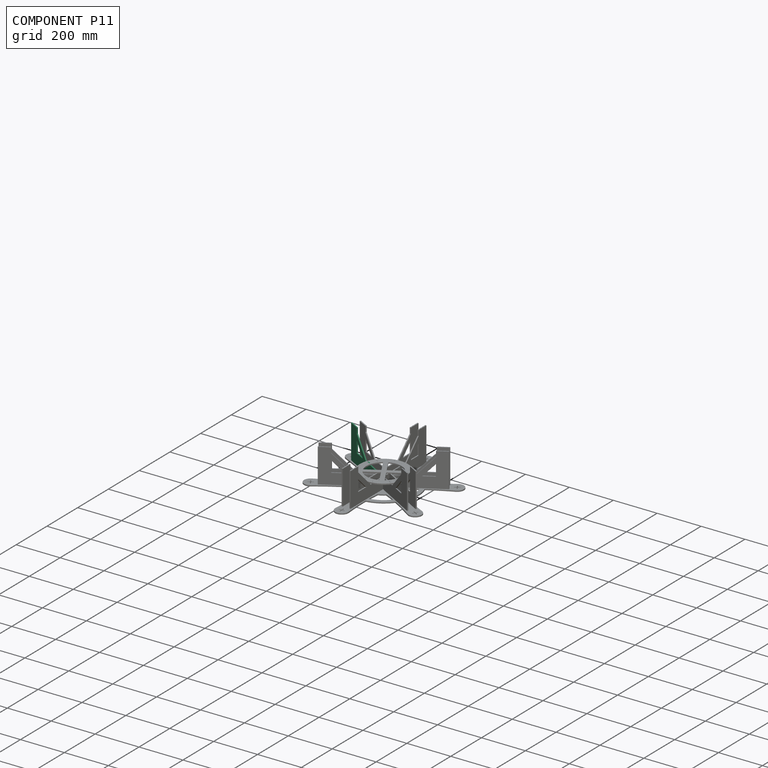
[diagram: component P11 — assembled]
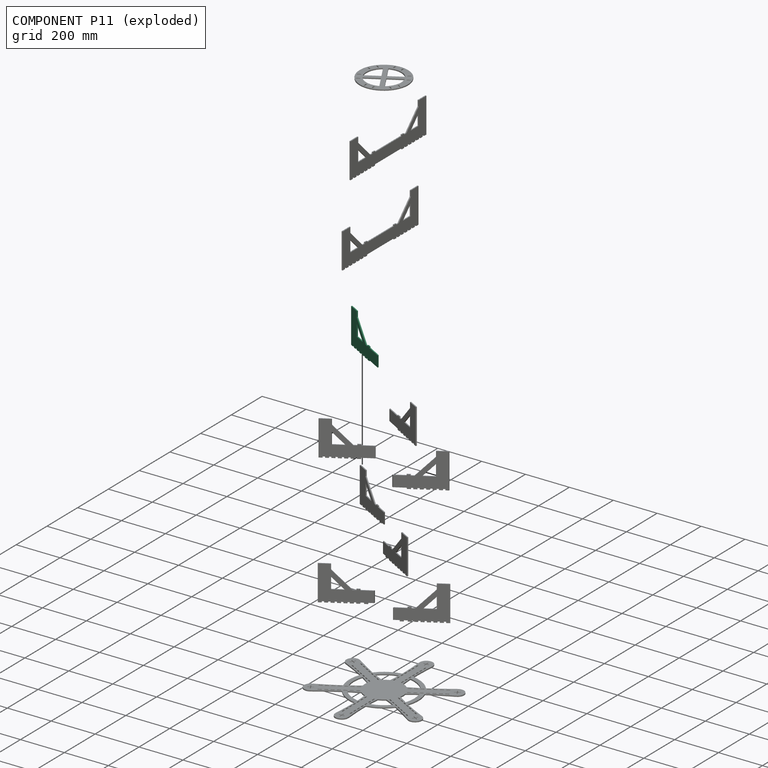
[diagram: component P11 — exploded]
COMPONENT P11 — same part as P10 (CADFS 00227160); its construction recipe is shown at P10.
Held by: FASTENED mate "Fastened 8" to P0.
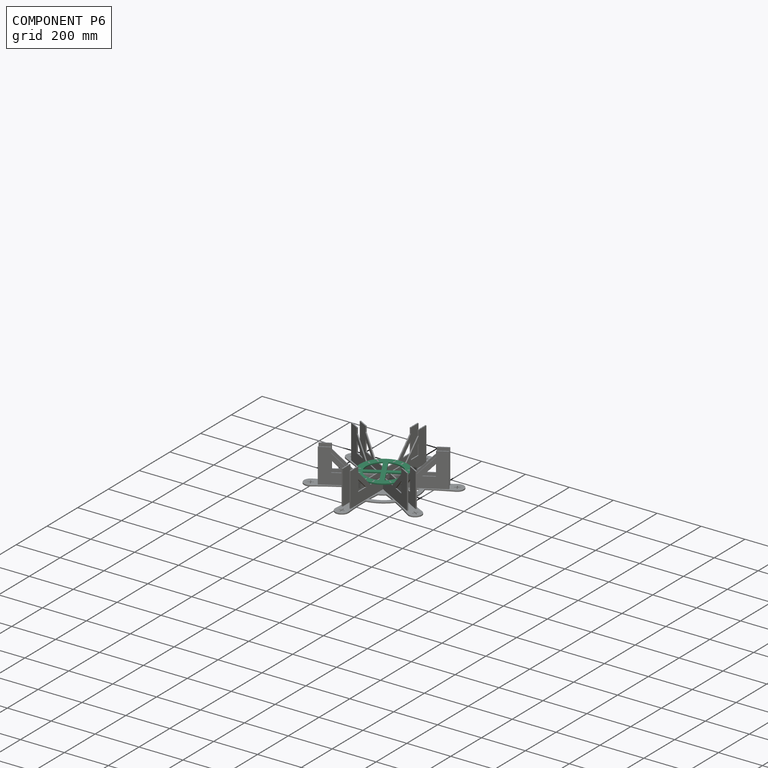
[diagram: component P6 — assembled]
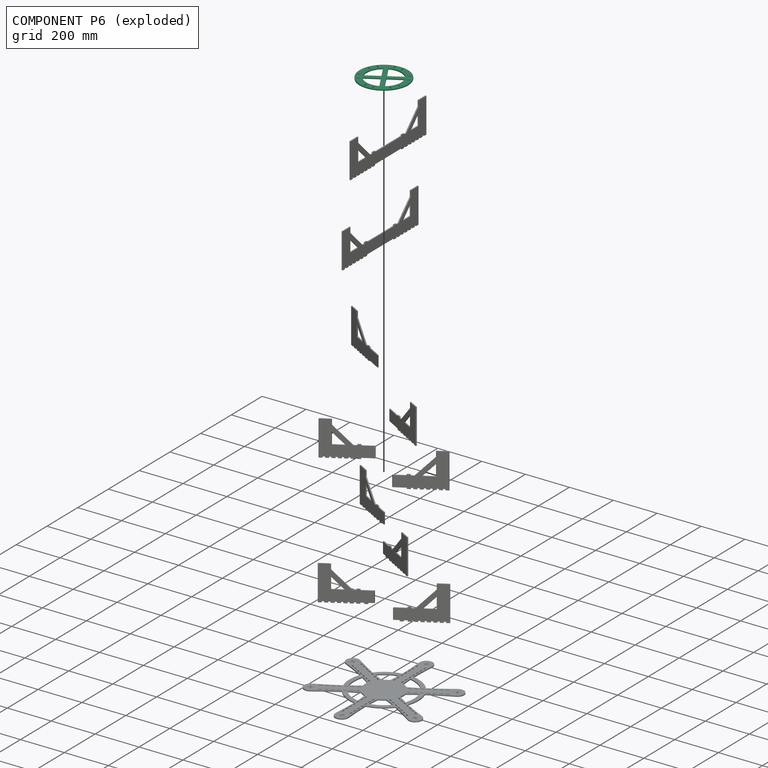
[diagram: component P6 — exploded]
COMPONENT P6 — recipe-attached (CADFS 00227259, mesh-verified: the recipe's output STEP matches this component's geometry to below the mesh-comparison resolution (tessellation chordal tolerance ~0.466 mm)).
Held by: FASTENED mate "Fastened 11" to P9.
Construction recipe (FeatureScript — the CAD program that rebuilds this solid; sketch coordinates are in the units given by the * unit suffixes, e.g. mm):

FeatureScript 1511;
import(path : "onshape/std/geometry.fs", version : "1511.0");
import(path : "onshape/std/common.fs", version : "1511.0");
const mm = millimeter;
const VERTEX = EntityType.VERTEX;
const EDGE = EntityType.EDGE;
const FACE = EntityType.FACE;
const BODY = EntityType.BODY;
function v(x, y){return vector(x, y);}
function OD(order){return orderDisambiguation(order);}
function OSD(set){return originalSetDisambiguation(set);}
function TD(topology){return topologyDisambiguation(topology);}
function TDD(query){return trueDependencyDisambiguation(query);}
function sQuery(a, b, c) {return sketchEntityQuery(a, b, c);}

annotation { "Feature Type Name" : "Feature", "Feature Type Description" : "" }
export const myFeature = defineFeature(function(context is Context, id is Id, definition is map)
    precondition{}
    {
        {
            var Q0;
            Q0=qCreatedBy(makeId("Top.planeOp"),FACE);
            var sketch = newSketch(context, id + "F0", { "sketchPlane" : qUnion([Q0])});
            skCircle(sketch, "E0", {"center": v(0, 0) * mm, "radius": 110 * mm});
            skArc(sketch, "E1", {"start": v(-10, 79.37) * mm, "mid": v(-56.57, 56.57) * mm, "end": v(-79.37, 10) * mm});
            skLineSegment(sketch, "E2.bottom", {"start": v(-20.4, 102) * mm, "end": v(-15.32, 102) * mm});
            skLineSegment(sketch, "E2.top", {"start": v(-20.4, 87) * mm, "end": v(-15.32, 87) * mm});
            skLineSegment(sketch, "E2.left", {"start": v(-20.4, 102) * mm, "end": v(-20.4, 87) * mm});
            skLineSegment(sketch, "E2.right", {"start": v(-15.32, 102) * mm, "end": v(-15.32, 87) * mm});
            skLineSegment(sketch, "E3", {"start": v(0, 0) * mm, "end": v(0, 117.32) * mm, "construction": true});
            skLineSegment(sketch, "E4.MirrorCS", {"start": v(15.32, 102) * mm, "end": v(15.32, 87) * mm});
            skLineSegment(sketch, "E5.MirrorCS", {"start": v(20.4, 102) * mm, "end": v(15.32, 102) * mm});
            skLineSegment(sketch, "E6.MirrorCS", {"start": v(20.4, 102) * mm, "end": v(20.4, 87) * mm});
            skLineSegment(sketch, "E7.MirrorCS", {"start": v(20.4, 87) * mm, "end": v(15.32, 87) * mm});
            skLineSegment(sketch, "E8.1.0", {"start": v(-98.54, 33.33) * mm, "end": v(-96, 37.73) * mm});
            skLineSegment(sketch, "E8.1.1", {"start": v(-98.54, 33.33) * mm, "end": v(-85.55, 25.83) * mm});
            skLineSegment(sketch, "E8.1.2", {"start": v(-85.55, 25.83) * mm, "end": v(-83, 30.23) * mm});
            skLineSegment(sketch, "E8.1.3", {"start": v(-96, 37.73) * mm, "end": v(-83, 30.23) * mm});
            skLineSegment(sketch, "E8.1.4", {"start": v(-80.67, 64.27) * mm, "end": v(-67.68, 56.77) * mm});
            skLineSegment(sketch, "E8.1.5", {"start": v(-78.13, 68.67) * mm, "end": v(-80.67, 64.27) * mm});
            skLineSegment(sketch, "E8.1.6", {"start": v(-78.13, 68.67) * mm, "end": v(-65.14, 61.17) * mm});
            skLineSegment(sketch, "E8.1.7", {"start": v(-65.14, 61.17) * mm, "end": v(-67.68, 56.77) * mm});
            skLineSegment(sketch, "E8.2.0", {"start": v(-78.13, -68.67) * mm, "end": v(-80.67, -64.27) * mm});
            skLineSegment(sketch, "E8.2.1", {"start": v(-78.13, -68.67) * mm, "end": v(-65.14, -61.17) * mm});
            skLineSegment(sketch, "E8.2.2", {"start": v(-65.14, -61.17) * mm, "end": v(-67.68, -56.77) * mm});
            skLineSegment(sketch, "E8.2.3", {"start": v(-80.67, -64.27) * mm, "end": v(-67.68, -56.77) * mm});
            skLineSegment(sketch, "E8.2.4", {"start": v(-96, -37.73) * mm, "end": v(-83, -30.23) * mm});
            skLineSegment(sketch, "E8.2.5", {"start": v(-98.54, -33.33) * mm, "end": v(-96, -37.73) * mm});
            skLineSegment(sketch, "E8.2.6", {"start": v(-98.54, -33.33) * mm, "end": v(-85.55, -25.83) * mm});
            skLineSegment(sketch, "E8.2.7", {"start": v(-85.55, -25.83) * mm, "end": v(-83, -30.23) * mm});
            skLineSegment(sketch, "E8.3.0", {"start": v(20.4, -102) * mm, "end": v(15.32, -102) * mm});
            skLineSegment(sketch, "E8.3.1", {"start": v(20.4, -102) * mm, "end": v(20.4, -87) * mm});
            skLineSegment(sketch, "E8.3.2", {"start": v(20.4, -87) * mm, "end": v(15.32, -87) * mm});
            skLineSegment(sketch, "E8.3.3", {"start": v(15.32, -102) * mm, "end": v(15.32, -87) * mm});
            skLineSegment(sketch, "E8.3.4", {"start": v(-15.32, -102) * mm, "end": v(-15.32, -87) * mm});
            skLineSegment(sketch, "E8.3.5", {"start": v(-20.4, -102) * mm, "end": v(-15.32, -102) * mm});
            skLineSegment(sketch, "E8.3.6", {"start": v(-20.4, -102) * mm, "end": v(-20.4, -87) * mm});
            skLineSegment(sketch, "E8.3.7", {"start": v(-20.4, -87) * mm, "end": v(-15.32, -87) * mm});
            skLineSegment(sketch, "E8.4.0", {"start": v(98.54, -33.33) * mm, "end": v(96, -37.73) * mm});
            skLineSegment(sketch, "E8.4.1", {"start": v(98.54, -33.33) * mm, "end": v(85.55, -25.83) * mm});
            skLineSegment(sketch, "E8.4.2", {"start": v(85.55, -25.83) * mm, "end": v(83, -30.23) * mm});
            skLineSegment(sketch, "E8.4.3", {"start": v(96, -37.73) * mm, "end": v(83, -30.23) * mm});
            skLineSegment(sketch, "E8.4.4", {"start": v(80.67, -64.27) * mm, "end": v(67.68, -56.77) * mm});
            skLineSegment(sketch, "E8.4.5", {"start": v(78.13, -68.67) * mm, "end": v(80.67, -64.27) * mm});
            skLineSegment(sketch, "E8.4.6", {"start": v(78.13, -68.67) * mm, "end": v(65.14, -61.17) * mm});
            skLineSegment(sketch, "E8.4.7", {"start": v(65.14, -61.17) * mm, "end": v(67.68, -56.77) * mm});
            skLineSegment(sketch, "E8.5.0", {"start": v(78.13, 68.67) * mm, "end": v(80.67, 64.27) * mm});
            skLineSegment(sketch, "E8.5.1", {"start": v(78.13, 68.67) * mm, "end": v(65.14, 61.17) * mm});
            skLineSegment(sketch, "E8.5.2", {"start": v(65.14, 61.17) * mm, "end": v(67.68, 56.77) * mm});
            skLineSegment(sketch, "E8.5.3", {"start": v(80.67, 64.27) * mm, "end": v(67.68, 56.77) * mm});
            skLineSegment(sketch, "E8.5.4", {"start": v(96, 37.73) * mm, "end": v(83, 30.23) * mm});
            skLineSegment(sketch, "E8.5.5", {"start": v(98.54, 33.33) * mm, "end": v(96, 37.73) * mm});
            skLineSegment(sketch, "E8.5.6", {"start": v(98.54, 33.33) * mm, "end": v(85.55, 25.83) * mm});
            skLineSegment(sketch, "E8.5.7", {"start": v(85.55, 25.83) * mm, "end": v(83, 30.23) * mm});
            skLineSegment(sketch, "E9", {"start": v(-10, 79.37) * mm, "end": v(-10, 10) * mm});
            skLineSegment(sketch, "E10.MirrorCS", {"start": v(10, 79.37) * mm, "end": v(10, 10) * mm});
            skArc(sketch, "E11.trimOffspring", {"start": v(10, -79.37) * mm, "mid": v(56.57, -56.57) * mm, "end": v(79.37, -10) * mm});
            skLineSegment(sketch, "E12", {"start": v(-79.37, 10) * mm, "end": v(-10, 10) * mm});
            skLineSegment(sketch, "E13.MirrorCS", {"start": v(-79.37, -10) * mm, "end": v(-10, -10) * mm});
            skLineSegment(sketch, "E14.trimOffspring", {"start": v(-10, -10) * mm, "end": v(-10, -79.37) * mm});
            skLineSegment(sketch, "E15.trimOffspring", {"start": v(10, -10) * mm, "end": v(10, -79.37) * mm});
            skArc(sketch, "E16.trimOffspring", {"start": v(-79.37, -10) * mm, "mid": v(-56.57, -56.57) * mm, "end": v(-10, -79.37) * mm});
            skArc(sketch, "E17.trimOffspring", {"start": v(79.37, 10) * mm, "mid": v(56.57, 56.57) * mm, "end": v(10, 79.37) * mm});
            skLineSegment(sketch, "E18.trimOffspring", {"start": v(10, 10) * mm, "end": v(79.37, 10) * mm});
            skLineSegment(sketch, "E19.trimOffspring", {"start": v(10, -10) * mm, "end": v(79.37, -10) * mm});
            skSolve(sketch);
        }
        {
            var Q0;
            Q0 = qSketchRegion(id + "F0", true);
            extrude(context, id + "F1", {"entities" : qUnion([Q0]), "depth" : 5.08 * mm});
        }
    });
